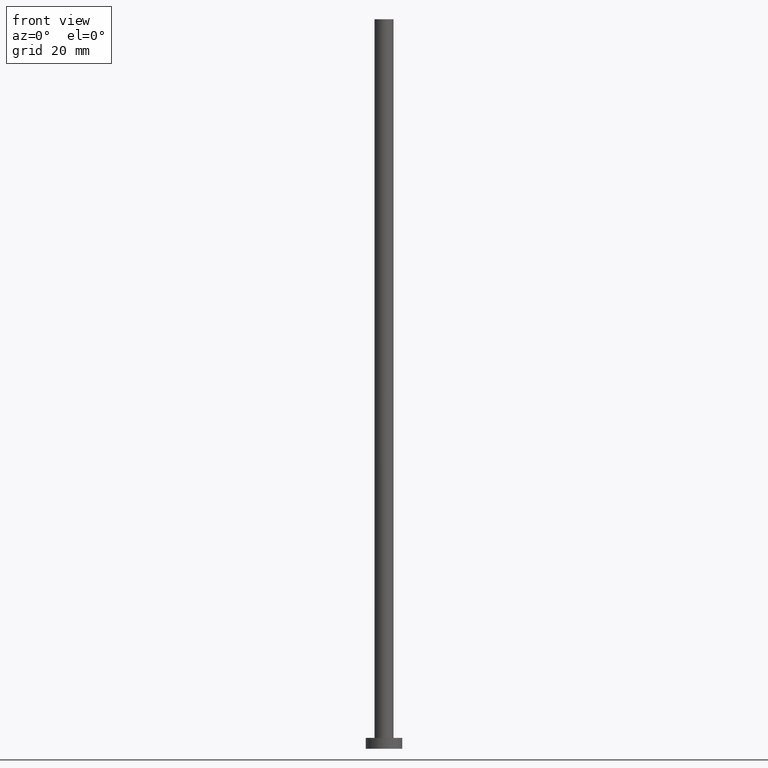
[diagram: clean part render]
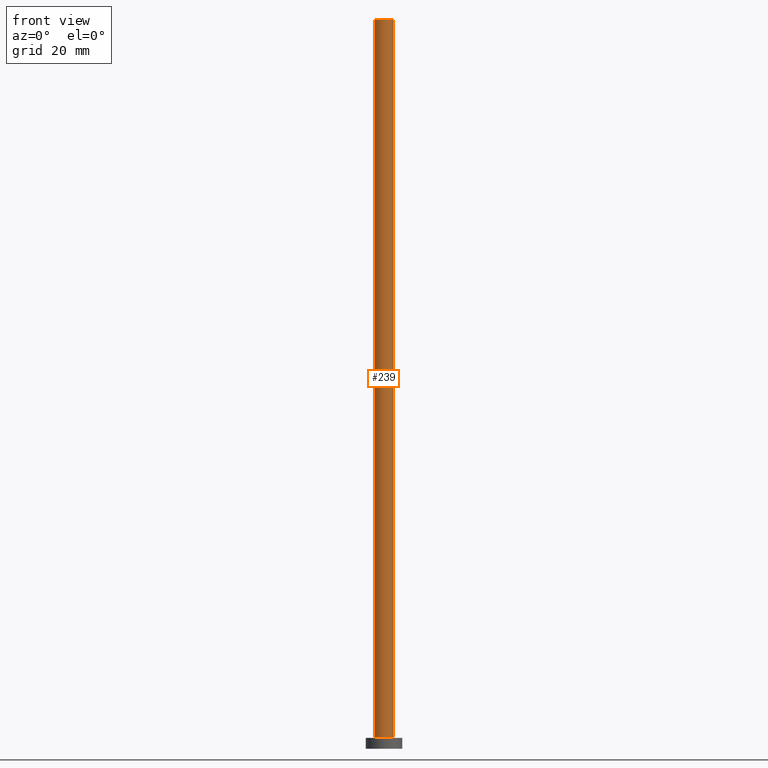
[diagram: same view with one face highlighted and labeled with its STEP entity id]
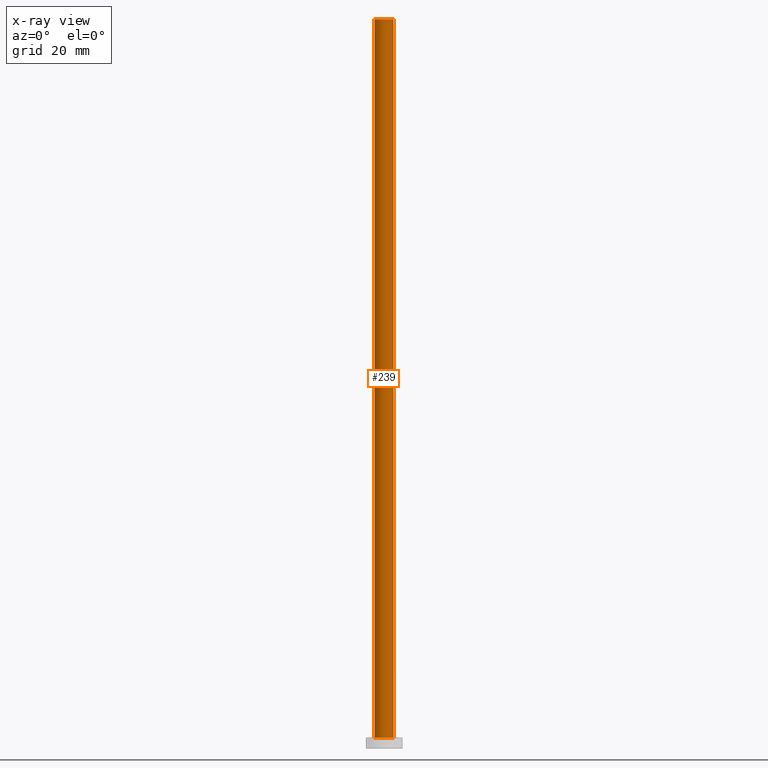
[diagram: x-ray of the same camera — body ghosted, the highlighted face saturated]
A machine part, front view. The second image highlights one B-rep face of the part: STEP entity #239.
The next image is the same camera in x-ray: the body ghosted, the highlighted face saturated — about 0% of this face is hidden behind the body in this view.
In plain terms, the highlighted cylindrical surface (edge-blend (fillet) strip) has radius 2.6 mm, axis along (-0, -0, -1).
Its self-contained STEP definition (entity closure, byte-faithful):
#7 = ORIENTED_EDGE ( 'NONE', *, *, #43, .F. ) ;
#12 = DIRECTION ( 'NONE',  ( 0.000000000000000000, 0.000000000000000000, 1.000000000000000000 ) ) ;
#16 = DIRECTION ( 'NONE',  ( 0.000000000000000000, 0.000000000000000000, 1.000000000000000000 ) ) ;
#34 = FACE_OUTER_BOUND ( 'NONE', #44, .T. ) ;
#36 = DIRECTION ( 'NONE',  ( -1.000000000000000000, 0.000000000000000000, 0.000000000000000000 ) ) ;
#43 = EDGE_CURVE ( 'NONE', #214, #119, #62, .T. ) ;
#44 = EDGE_LOOP ( 'NONE', ( #7, #138, #154, #76 ) ) ;
#47 = CARTESIAN_POINT ( 'NONE',  ( -2.600000000000000089, 0.000000000000000000, 3.000000000000000000 ) ) ;
#48 = CARTESIAN_POINT ( 'NONE',  ( 2.600000000000000089, 3.184081677783118191E-16, 3.000000000000000000 ) ) ;
#53 = VECTOR ( 'NONE', #59, 1000.000000000000000 ) ;
#59 = DIRECTION ( 'NONE',  ( -0.000000000000000000, -0.000000000000000000, -1.000000000000000000 ) ) ;
#62 = LINE ( 'NONE', #121, #99 ) ;
#67 = AXIS2_PLACEMENT_3D ( 'NONE', #224, #16, #110 ) ;
#76 = ORIENTED_EDGE ( 'NONE', *, *, #149, .T. ) ;
#81 = CARTESIAN_POINT ( 'NONE',  ( -2.600000000000000089, 0.000000000000000000, 200.0000000000000000 ) ) ;
#85 = AXIS2_PLACEMENT_3D ( 'NONE', #226, #12, #150 ) ;
#91 = EDGE_CURVE ( 'NONE', #217, #193, #242, .T. ) ;
#99 = VECTOR ( 'NONE', #163, 1000.000000000000000 ) ;
#108 = CYLINDRICAL_SURFACE ( 'NONE', #182, 2.600000000000000089 ) ;
#110 = DIRECTION ( 'NONE',  ( 1.000000000000000000, 0.000000000000000000, 0.000000000000000000 ) ) ;
#119 = VERTEX_POINT ( 'NONE', #48 ) ;
#121 = CARTESIAN_POINT ( 'NONE',  ( 2.600000000000000089, 3.184081677783118191E-16, 200.0000000000000000 ) ) ;
#126 = DIRECTION ( 'NONE',  ( -0.000000000000000000, -0.000000000000000000, -1.000000000000000000 ) ) ;
#132 = CARTESIAN_POINT ( 'NONE',  ( -2.600000000000000089, 0.000000000000000000, 200.0000000000000000 ) ) ;
#138 = ORIENTED_EDGE ( 'NONE', *, *, #139, .F. ) ;
#139 = EDGE_CURVE ( 'NONE', #217, #214, #164, .T. ) ;
#149 = EDGE_CURVE ( 'NONE', #193, #119, #161, .T. ) ;
#150 = DIRECTION ( 'NONE',  ( 1.000000000000000000, 0.000000000000000000, 0.000000000000000000 ) ) ;
#154 = ORIENTED_EDGE ( 'NONE', *, *, #91, .T. ) ;
#161 = CIRCLE ( 'NONE', #67, 2.600000000000000089 ) ;
#163 = DIRECTION ( 'NONE',  ( -0.000000000000000000, -0.000000000000000000, -1.000000000000000000 ) ) ;
#164 = CIRCLE ( 'NONE', #85, 2.600000000000000089 ) ;
#165 = CARTESIAN_POINT ( 'NONE',  ( 0.000000000000000000, 0.000000000000000000, 200.0000000000000000 ) ) ;
#182 = AXIS2_PLACEMENT_3D ( 'NONE', #165, #126, #36 ) ;
#193 = VERTEX_POINT ( 'NONE', #47 ) ;
#214 = VERTEX_POINT ( 'NONE', #250 ) ;
#217 = VERTEX_POINT ( 'NONE', #132 ) ;
#224 = CARTESIAN_POINT ( 'NONE',  ( 0.000000000000000000, 0.000000000000000000, 3.000000000000000000 ) ) ;
#226 = CARTESIAN_POINT ( 'NONE',  ( 0.000000000000000000, 0.000000000000000000, 200.0000000000000000 ) ) ;
#239 = ADVANCED_FACE ( 'NONE', ( #34 ), #108, .T. ) ;
#242 = LINE ( 'NONE', #81, #53 ) ;
#250 = CARTESIAN_POINT ( 'NONE',  ( 2.600000000000000089, 3.184081677783118191E-16, 200.0000000000000000 ) ) ;